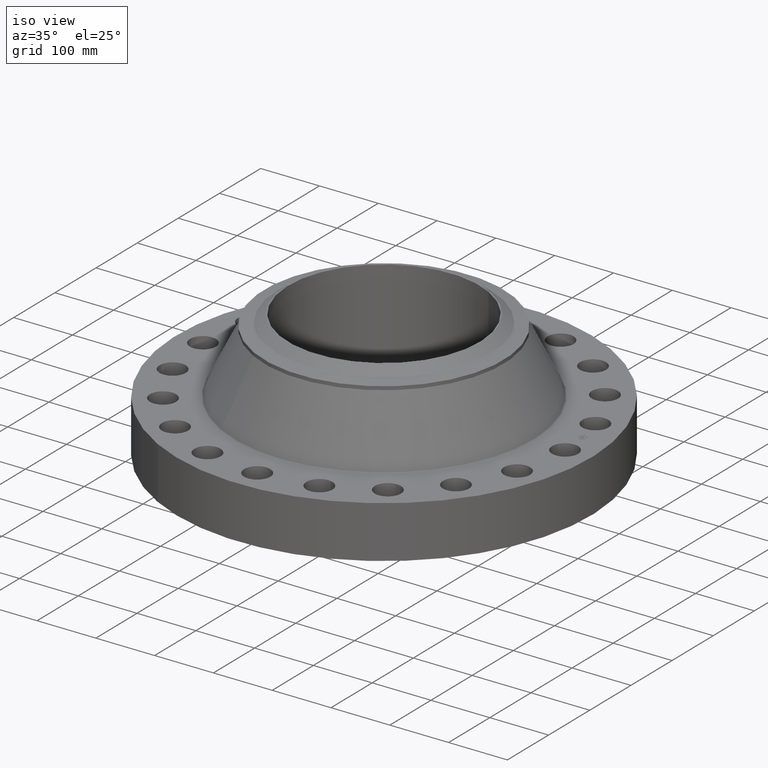
[diagram: clean part render]
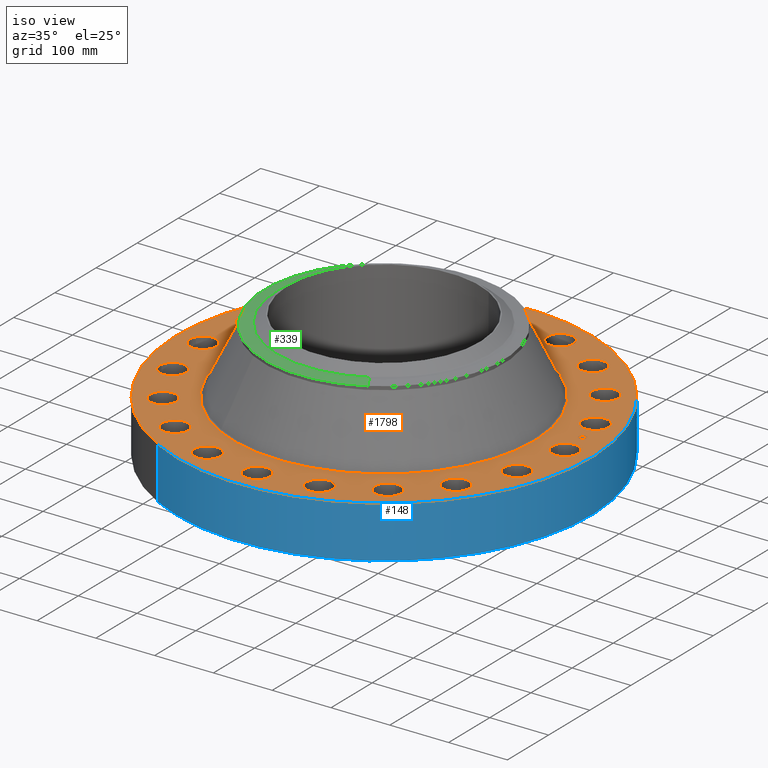
[diagram: same view with three faces highlighted in distinct colors, each labeled with its STEP entity id]
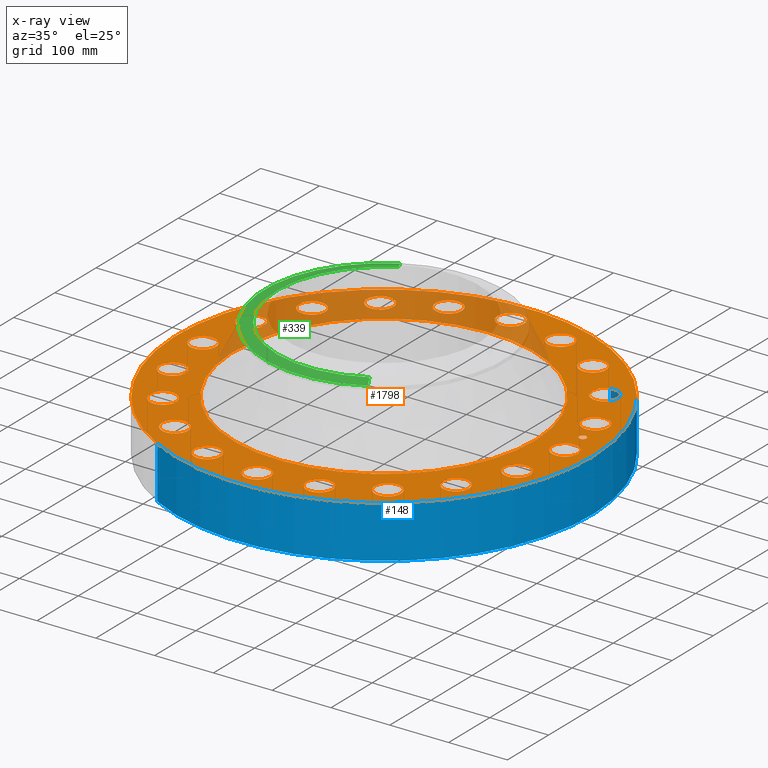
[diagram: x-ray of the same camera — body ghosted, the three highlighted faces saturated]
A machine part, iso view with three faces highlighted in distinct colors.
The next image is the same camera in x-ray (body ghosted, the three faces saturated) — at least one of them is partly hidden behind the body in this view.
Their STEP definitions:

[orange] entity #1798 — the highlighted planar face has unit normal (0, 0, -1).
#65=AXIS2_PLACEMENT_3D('Circle Axis2P3D',#63,#64,$) ;
#82=AXIS2_PLACEMENT_3D('Circle Axis2P3D',#80,#81,$) ;
#115=AXIS2_PLACEMENT_3D('Circle Axis2P3D',#113,#114,$) ;
#139=AXIS2_PLACEMENT_3D('Circle Axis2P3D',#137,#138,$) ;
#156=AXIS2_PLACEMENT_3D('Circle Axis2P3D',#154,#155,$) ;
#191=AXIS2_PLACEMENT_3D('Circle Axis2P3D',#189,#190,$) ;
#891=AXIS2_PLACEMENT_3D('Circle Axis2P3D',#889,#890,$) ;
#903=AXIS2_PLACEMENT_3D('Circle Axis2P3D',#901,#902,$) ;
#934=AXIS2_PLACEMENT_3D('Circle Axis2P3D',#932,#933,$) ;
#946=AXIS2_PLACEMENT_3D('Circle Axis2P3D',#944,#945,$) ;
#977=AXIS2_PLACEMENT_3D('Circle Axis2P3D',#975,#976,$) ;
#989=AXIS2_PLACEMENT_3D('Circle Axis2P3D',#987,#988,$) ;
#1020=AXIS2_PLACEMENT_3D('Circle Axis2P3D',#1018,#1019,$) ;
#1032=AXIS2_PLACEMENT_3D('Circle Axis2P3D',#1030,#1031,$) ;
#1063=AXIS2_PLACEMENT_3D('Circle Axis2P3D',#1061,#1062,$) ;
#1075=AXIS2_PLACEMENT_3D('Circle Axis2P3D',#1073,#1074,$) ;
#1106=AXIS2_PLACEMENT_3D('Circle Axis2P3D',#1104,#1105,$) ;
#1118=AXIS2_PLACEMENT_3D('Circle Axis2P3D',#1116,#1117,$) ;
#1149=AXIS2_PLACEMENT_3D('Circle Axis2P3D',#1147,#1148,$) ;
#1161=AXIS2_PLACEMENT_3D('Circle Axis2P3D',#1159,#1160,$) ;
#1192=AXIS2_PLACEMENT_3D('Circle Axis2P3D',#1190,#1191,$) ;
#1204=AXIS2_PLACEMENT_3D('Circle Axis2P3D',#1202,#1203,$) ;
#1235=AXIS2_PLACEMENT_3D('Circle Axis2P3D',#1233,#1234,$) ;
#1247=AXIS2_PLACEMENT_3D('Circle Axis2P3D',#1245,#1246,$) ;
#1278=AXIS2_PLACEMENT_3D('Circle Axis2P3D',#1276,#1277,$) ;
#1290=AXIS2_PLACEMENT_3D('Circle Axis2P3D',#1288,#1289,$) ;
#1321=AXIS2_PLACEMENT_3D('Circle Axis2P3D',#1319,#1320,$) ;
#1333=AXIS2_PLACEMENT_3D('Circle Axis2P3D',#1331,#1332,$) ;
#1364=AXIS2_PLACEMENT_3D('Circle Axis2P3D',#1362,#1363,$) ;
#1376=AXIS2_PLACEMENT_3D('Circle Axis2P3D',#1374,#1375,$) ;
#1407=AXIS2_PLACEMENT_3D('Circle Axis2P3D',#1405,#1406,$) ;
#1419=AXIS2_PLACEMENT_3D('Circle Axis2P3D',#1417,#1418,$) ;
#1450=AXIS2_PLACEMENT_3D('Circle Axis2P3D',#1448,#1449,$) ;
#1462=AXIS2_PLACEMENT_3D('Circle Axis2P3D',#1460,#1461,$) ;
#1493=AXIS2_PLACEMENT_3D('Circle Axis2P3D',#1491,#1492,$) ;
#1505=AXIS2_PLACEMENT_3D('Circle Axis2P3D',#1503,#1504,$) ;
#1536=AXIS2_PLACEMENT_3D('Circle Axis2P3D',#1534,#1535,$) ;
#1548=AXIS2_PLACEMENT_3D('Circle Axis2P3D',#1546,#1547,$) ;
#1579=AXIS2_PLACEMENT_3D('Circle Axis2P3D',#1577,#1578,$) ;
#1591=AXIS2_PLACEMENT_3D('Circle Axis2P3D',#1589,#1590,$) ;
#1622=AXIS2_PLACEMENT_3D('Circle Axis2P3D',#1620,#1621,$) ;
#1634=AXIS2_PLACEMENT_3D('Circle Axis2P3D',#1632,#1633,$) ;
#1665=AXIS2_PLACEMENT_3D('Circle Axis2P3D',#1663,#1664,$) ;
#1677=AXIS2_PLACEMENT_3D('Circle Axis2P3D',#1675,#1676,$) ;
#1690=AXIS2_PLACEMENT_3D('Plane Axis2P3D',#1687,#1688,#1689) ;
#1782=AXIS2_PLACEMENT_3D('Circle Axis2P3D',#1780,#1781,$) ;
#1791=AXIS2_PLACEMENT_3D('Circle Axis2P3D',#1789,#1790,$) ;
#46=CARTESIAN_POINT('Vertex',(11.3571152584,0.41949734628,3.50000000001)) ;
#60=CARTESIAN_POINT('Vertex',(12.8928847417,-0.41949734628,3.50000000001)) ;
#63=CARTESIAN_POINT('Axis2P3D Location',(12.125,0.,3.50000000001)) ;
#80=CARTESIAN_POINT('Axis2P3D Location',(12.125,0.,3.50000000001)) ;
#110=CARTESIAN_POINT('Vertex',(-6.65202934816,-12.1764580463,3.50000000001)) ;
#113=CARTESIAN_POINT('Axis2P3D Location',(0.,0.,3.50000000001)) ;
#117=CARTESIAN_POINT('Vertex',(6.65202934816,12.1764580463,3.50000000001)) ;
#137=CARTESIAN_POINT('Axis2P3D Location',(0.,0.,3.50000000001)) ;
#154=CARTESIAN_POINT('Axis2P3D Location',(0.,0.,3.50000000001)) ;
#158=CARTESIAN_POINT('Vertex',(4.83020647393,8.84163364387,3.50000000001)) ;
#160=CARTESIAN_POINT('Vertex',(-4.83020647393,-8.84163364387,3.50000000001)) ;
#189=CARTESIAN_POINT('Axis2P3D Location',(0.,0.,3.50000000001)) ;
#879=CARTESIAN_POINT('Vertex',(-10.9308902819,3.11057593717,3.50000000001)) ;
#886=CARTESIAN_POINT('Vertex',(-12.1322302383,4.38308617645,3.50000000001)) ;
#889=CARTESIAN_POINT('Axis2P3D Location',(-11.5315602601,3.74683105681,3.50000000001)) ;
#901=CARTESIAN_POINT('Axis2P3D Location',(-11.5315602601,3.74683105681,3.50000000001)) ;
#922=CARTESIAN_POINT('Vertex',(9.43467360463,-6.33616437523,3.50000000001)) ;
#929=CARTESIAN_POINT('Vertex',(10.183988509,-7.91762799292,3.50000000001)) ;
#932=CARTESIAN_POINT('Axis2P3D Location',(9.80933105684,-7.12689618407,3.50000000001)) ;
#944=CARTESIAN_POINT('Axis2P3D Location',(9.80933105684,-7.12689618407,3.50000000001)) ;
#965=CARTESIAN_POINT('Vertex',(-9.43467360463,6.33616437523,3.50000000001)) ;
#972=CARTESIAN_POINT('Vertex',(-10.183988509,7.91762799292,3.50000000001)) ;
#975=CARTESIAN_POINT('Axis2P3D Location',(-9.80933105684,7.12689618407,3.50000000001)) ;
#987=CARTESIAN_POINT('Axis2P3D Location',(-9.80933105684,7.12689618407,3.50000000001)) ;
#1008=CARTESIAN_POINT('Vertex',(7.0149253397,-8.94152489759,3.50000000001)) ;
#1015=CARTESIAN_POINT('Vertex',(7.23886702845,-10.6771372161,3.50000000001)) ;
#1018=CARTESIAN_POINT('Axis2P3D Location',(7.12689618407,-9.80933105684,3.50000000001)) ;
#1030=CARTESIAN_POINT('Axis2P3D Location',(7.12689618407,-9.80933105684,3.50000000001)) ;
#1051=CARTESIAN_POINT('Vertex',(-7.0149253397,8.94152489759,3.50000000001)) ;
#1058=CARTESIAN_POINT('Vertex',(-7.23886702845,10.6771372161,3.50000000001)) ;
#1061=CARTESIAN_POINT('Axis2P3D Location',(-7.12689618407,9.80933105684,3.50000000001)) ;
#1073=CARTESIAN_POINT('Axis2P3D Location',(-7.12689618407,9.80933105684,3.50000000001)) ;
#1094=CARTESIAN_POINT('Vertex',(3.90850730667,-10.6716266637,3.50000000001)) ;
#1101=CARTESIAN_POINT('Vertex',(3.58515480696,-12.3914938565,3.50000000001)) ;
#1104=CARTESIAN_POINT('Axis2P3D Location',(3.74683105681,-11.5315602601,3.50000000001)) ;
#1116=CARTESIAN_POINT('Axis2P3D Location',(3.74683105681,-11.5315602601,3.50000000001)) ;
#1137=CARTESIAN_POINT('Vertex',(-3.90850730667,10.6716266637,3.50000000001)) ;
#1144=CARTESIAN_POINT('Vertex',(-3.58515480696,12.3914938565,3.50000000001)) ;
#1147=CARTESIAN_POINT('Axis2P3D Location',(-3.74683105681,11.5315602601,3.50000000001)) ;
#1159=CARTESIAN_POINT('Axis2P3D Location',(-3.74683105681,11.5315602601,3.50000000001)) ;
#1180=CARTESIAN_POINT('Vertex',(0.41949734628,-11.3571152584,3.50000000001)) ;
#1187=CARTESIAN_POINT('Vertex',(-0.41949734628,-12.8928847417,3.50000000001)) ;
#1190=CARTESIAN_POINT('Axis2P3D Location',(3.43473295671E-015,-12.125,3.50000000001)) ;
#1202=CARTESIAN_POINT('Axis2P3D Location',(3.43473295671E-015,-12.125,3.50000000001)) ;
#1223=CARTESIAN_POINT('Vertex',(-0.41949734628,11.3571152584,3.50000000001)) ;
#1230=CARTESIAN_POINT('Vertex',(0.41949734628,12.8928847417,3.50000000001)) ;
#1233=CARTESIAN_POINT('Axis2P3D Location',(-1.29964897049E-014,12.125,3.50000000001)) ;
#1245=CARTESIAN_POINT('Axis2P3D Location',(-1.29964897049E-014,12.125,3.50000000001)) ;
#1266=CARTESIAN_POINT('Vertex',(-3.11057593717,-10.9308902819,3.50000000001)) ;
#1273=CARTESIAN_POINT('Vertex',(-4.38308617645,-12.1322302383,3.50000000001)) ;
#1276=CARTESIAN_POINT('Axis2P3D Location',(-3.74683105681,-11.5315602601,3.50000000001)) ;
#1288=CARTESIAN_POINT('Axis2P3D Location',(-3.74683105681,-11.5315602601,3.50000000001)) ;
#1309=CARTESIAN_POINT('Vertex',(3.11057593717,10.9308902819,3.50000000001)) ;
#1316=CARTESIAN_POINT('Vertex',(4.38308617645,12.1322302383,3.50000000001)) ;
#1319=CARTESIAN_POINT('Axis2P3D Location',(3.74683105681,11.5315602601,3.50000000001)) ;
#1331=CARTESIAN_POINT('Axis2P3D Location',(3.74683105681,11.5315602601,3.50000000001)) ;
#1352=CARTESIAN_POINT('Vertex',(-6.33616437523,-9.43467360463,3.50000000001)) ;
#1359=CARTESIAN_POINT('Vertex',(-7.91762799292,-10.183988509,3.50000000001)) ;
#1362=CARTESIAN_POINT('Axis2P3D Location',(-7.12689618407,-9.80933105684,3.50000000001)) ;
#1374=CARTESIAN_POINT('Axis2P3D Location',(-7.12689618407,-9.80933105684,3.50000000001)) ;
#1395=CARTESIAN_POINT('Vertex',(6.33616437523,9.43467360463,3.50000000001)) ;
#1402=CARTESIAN_POINT('Vertex',(7.91762799292,10.183988509,3.50000000001)) ;
#1405=CARTESIAN_POINT('Axis2P3D Location',(7.12689618407,9.80933105684,3.50000000001)) ;
#1417=CARTESIAN_POINT('Axis2P3D Location',(7.12689618407,9.80933105684,3.50000000001)) ;
#1438=CARTESIAN_POINT('Vertex',(-8.94152489759,-7.0149253397,3.50000000001)) ;
#1445=CARTESIAN_POINT('Vertex',(-10.6771372161,-7.23886702845,3.50000000001)) ;
#1448=CARTESIAN_POINT('Axis2P3D Location',(-9.80933105684,-7.12689618407,3.50000000001)) ;
#1460=CARTESIAN_POINT('Axis2P3D Location',(-9.80933105684,-7.12689618407,3.50000000001)) ;
#1481=CARTESIAN_POINT('Vertex',(8.94152489759,7.0149253397,3.50000000001)) ;
#1488=CARTESIAN_POINT('Vertex',(10.6771372161,7.23886702845,3.50000000001)) ;
#1491=CARTESIAN_POINT('Axis2P3D Location',(9.80933105684,7.12689618407,3.50000000001)) ;
#1503=CARTESIAN_POINT('Axis2P3D Location',(9.80933105684,7.12689618407,3.50000000001)) ;
#1524=CARTESIAN_POINT('Vertex',(-10.6716266637,-3.90850730667,3.50000000001)) ;
#1531=CARTESIAN_POINT('Vertex',(-12.3914938565,-3.58515480696,3.50000000001)) ;
#1534=CARTESIAN_POINT('Axis2P3D Location',(-11.5315602601,-3.74683105681,3.50000000001)) ;
#1546=CARTESIAN_POINT('Axis2P3D Location',(-11.5315602601,-3.74683105681,3.50000000001)) ;
#1567=CARTESIAN_POINT('Vertex',(10.6716266637,3.90850730667,3.50000000001)) ;
#1574=CARTESIAN_POINT('Vertex',(12.3914938565,3.58515480696,3.50000000001)) ;
#1577=CARTESIAN_POINT('Axis2P3D Location',(11.5315602601,3.74683105681,3.50000000001)) ;
#1589=CARTESIAN_POINT('Axis2P3D Location',(11.5315602601,3.74683105681,3.50000000001)) ;
#1610=CARTESIAN_POINT('Vertex',(-11.3571152584,-0.41949734628,3.50000000001)) ;
#1617=CARTESIAN_POINT('Vertex',(-12.8928847417,0.41949734628,3.50000000001)) ;
#1620=CARTESIAN_POINT('Axis2P3D Location',(-12.125,-6.86946591343E-015,3.50000000001)) ;
#1632=CARTESIAN_POINT('Axis2P3D Location',(-12.125,-6.86946591343E-015,3.50000000001)) ;
#1653=CARTESIAN_POINT('Vertex',(10.9308902819,-3.11057593717,3.50000000001)) ;
#1660=CARTESIAN_POINT('Vertex',(12.1322302383,-4.38308617645,3.50000000001)) ;
#1663=CARTESIAN_POINT('Axis2P3D Location',(11.5315602601,-3.74683105681,3.50000000001)) ;
#1675=CARTESIAN_POINT('Axis2P3D Location',(11.5315602601,-3.74683105681,3.50000000001)) ;
#1687=CARTESIAN_POINT('Axis2P3D Location',(0.,13.8750000001,3.50000000001)) ;
#1780=CARTESIAN_POINT('Axis2P3D Location',(11.9757211298,1.89676788862,3.50000000001)) ;
#1784=CARTESIAN_POINT('Vertex',(11.9370035997,2.14122075292,3.50000000001)) ;
#1786=CARTESIAN_POINT('Vertex',(12.0144386599,1.65231502432,3.50000000001)) ;
#1789=CARTESIAN_POINT('Axis2P3D Location',(11.9757211298,1.89676788862,3.50000000001)) ;
#64=DIRECTION('Axis2P3D Direction',(0.,-0.,-0.0393700787402)) ;
#81=DIRECTION('Axis2P3D Direction',(0.,-0.,-0.0393700787402)) ;
#114=DIRECTION('Axis2P3D Direction',(0.,0.,-0.0393700787402)) ;
#138=DIRECTION('Axis2P3D Direction',(0.,0.,-0.0393700787402)) ;
#155=DIRECTION('Axis2P3D Direction',(0.,0.,-0.0393700787402)) ;
#190=DIRECTION('Axis2P3D Direction',(0.,0.,-0.0393700787402)) ;
#890=DIRECTION('Axis2P3D Direction',(0.,0.,-0.0393700787402)) ;
#902=DIRECTION('Axis2P3D Direction',(0.,0.,-0.0393700787402)) ;
#933=DIRECTION('Axis2P3D Direction',(0.,-0.,-0.0393700787402)) ;
#945=DIRECTION('Axis2P3D Direction',(0.,-0.,-0.0393700787402)) ;
#976=DIRECTION('Axis2P3D Direction',(0.,0.,-0.0393700787402)) ;
#988=DIRECTION('Axis2P3D Direction',(0.,0.,-0.0393700787402)) ;
#1019=DIRECTION('Axis2P3D Direction',(0.,-0.,-0.0393700787402)) ;
#1031=DIRECTION('Axis2P3D Direction',(0.,-0.,-0.0393700787402)) ;
#1062=DIRECTION('Axis2P3D Direction',(0.,0.,-0.0393700787402)) ;
#1074=DIRECTION('Axis2P3D Direction',(0.,0.,-0.0393700787402)) ;
#1105=DIRECTION('Axis2P3D Direction',(0.,-0.,-0.0393700787402)) ;
#1117=DIRECTION('Axis2P3D Direction',(0.,-0.,-0.0393700787402)) ;
#1148=DIRECTION('Axis2P3D Direction',(0.,0.,-0.0393700787402)) ;
#1160=DIRECTION('Axis2P3D Direction',(0.,0.,-0.0393700787402)) ;
#1191=DIRECTION('Axis2P3D Direction',(0.,-0.,-0.0393700787402)) ;
#1203=DIRECTION('Axis2P3D Direction',(0.,-0.,-0.0393700787402)) ;
#1234=DIRECTION('Axis2P3D Direction',(0.,0.,-0.0393700787402)) ;
#1246=DIRECTION('Axis2P3D Direction',(0.,0.,-0.0393700787402)) ;
#1277=DIRECTION('Axis2P3D Direction',(-0.,0.,-0.0393700787402)) ;
#1289=DIRECTION('Axis2P3D Direction',(-0.,0.,-0.0393700787402)) ;
#1320=DIRECTION('Axis2P3D Direction',(0.,0.,-0.0393700787402)) ;
#1332=DIRECTION('Axis2P3D Direction',(0.,0.,-0.0393700787402)) ;
#1363=DIRECTION('Axis2P3D Direction',(-0.,0.,-0.0393700787402)) ;
#1375=DIRECTION('Axis2P3D Direction',(-0.,0.,-0.0393700787402)) ;
#1406=DIRECTION('Axis2P3D Direction',(0.,0.,-0.0393700787402)) ;
#1418=DIRECTION('Axis2P3D Direction',(0.,0.,-0.0393700787402)) ;
#1449=DIRECTION('Axis2P3D Direction',(-0.,0.,-0.0393700787402)) ;
#1461=DIRECTION('Axis2P3D Direction',(-0.,0.,-0.0393700787402)) ;
#1492=DIRECTION('Axis2P3D Direction',(0.,0.,-0.0393700787402)) ;
#1504=DIRECTION('Axis2P3D Direction',(0.,0.,-0.0393700787402)) ;
#1535=DIRECTION('Axis2P3D Direction',(-0.,0.,-0.0393700787402)) ;
#1547=DIRECTION('Axis2P3D Direction',(-0.,0.,-0.0393700787402)) ;
#1578=DIRECTION('Axis2P3D Direction',(0.,0.,-0.0393700787402)) ;
#1590=DIRECTION('Axis2P3D Direction',(0.,0.,-0.0393700787402)) ;
#1621=DIRECTION('Axis2P3D Direction',(-0.,0.,-0.0393700787402)) ;
#1633=DIRECTION('Axis2P3D Direction',(-0.,0.,-0.0393700787402)) ;
#1664=DIRECTION('Axis2P3D Direction',(0.,-0.,-0.0393700787402)) ;
#1676=DIRECTION('Axis2P3D Direction',(0.,-0.,-0.0393700787402)) ;
#1688=DIRECTION('Axis2P3D Direction',(0.,0.,-0.0393700787402)) ;
#1689=DIRECTION('Axis2P3D XDirection',(0.0393700787402,0.,0.)) ;
#1781=DIRECTION('Axis2P3D Direction',(0.,0.,-0.0393700787402)) ;
#1790=DIRECTION('Axis2P3D Direction',(0.,0.,-0.0393700787402)) ;
#1693=ORIENTED_EDGE('',*,*,#141,.F.) ;
#1694=ORIENTED_EDGE('',*,*,#119,.F.) ;
#1697=ORIENTED_EDGE('',*,*,#67,.T.) ;
#1698=ORIENTED_EDGE('',*,*,#84,.T.) ;
#1701=ORIENTED_EDGE('',*,*,#193,.T.) ;
#1702=ORIENTED_EDGE('',*,*,#162,.T.) ;
#1705=ORIENTED_EDGE('',*,*,#1679,.T.) ;
#1706=ORIENTED_EDGE('',*,*,#1667,.T.) ;
#1709=ORIENTED_EDGE('',*,*,#948,.T.) ;
#1710=ORIENTED_EDGE('',*,*,#936,.T.) ;
#1713=ORIENTED_EDGE('',*,*,#1034,.T.) ;
#1714=ORIENTED_EDGE('',*,*,#1022,.T.) ;
#1717=ORIENTED_EDGE('',*,*,#1120,.T.) ;
#1718=ORIENTED_EDGE('',*,*,#1108,.T.) ;
#1721=ORIENTED_EDGE('',*,*,#1206,.T.) ;
#1722=ORIENTED_EDGE('',*,*,#1194,.T.) ;
#1725=ORIENTED_EDGE('',*,*,#1292,.T.) ;
#1726=ORIENTED_EDGE('',*,*,#1280,.T.) ;
#1729=ORIENTED_EDGE('',*,*,#1378,.T.) ;
#1730=ORIENTED_EDGE('',*,*,#1366,.T.) ;
#1733=ORIENTED_EDGE('',*,*,#1464,.T.) ;
#1734=ORIENTED_EDGE('',*,*,#1452,.T.) ;
#1737=ORIENTED_EDGE('',*,*,#1550,.T.) ;
#1738=ORIENTED_EDGE('',*,*,#1538,.T.) ;
#1741=ORIENTED_EDGE('',*,*,#1636,.T.) ;
#1742=ORIENTED_EDGE('',*,*,#1624,.T.) ;
#1745=ORIENTED_EDGE('',*,*,#905,.T.) ;
#1746=ORIENTED_EDGE('',*,*,#893,.T.) ;
#1749=ORIENTED_EDGE('',*,*,#991,.T.) ;
#1750=ORIENTED_EDGE('',*,*,#979,.T.) ;
#1753=ORIENTED_EDGE('',*,*,#1077,.T.) ;
#1754=ORIENTED_EDGE('',*,*,#1065,.T.) ;
#1757=ORIENTED_EDGE('',*,*,#1163,.T.) ;
#1758=ORIENTED_EDGE('',*,*,#1151,.T.) ;
#1761=ORIENTED_EDGE('',*,*,#1249,.T.) ;
#1762=ORIENTED_EDGE('',*,*,#1237,.T.) ;
#1765=ORIENTED_EDGE('',*,*,#1335,.T.) ;
#1766=ORIENTED_EDGE('',*,*,#1323,.T.) ;
#1769=ORIENTED_EDGE('',*,*,#1421,.T.) ;
#1770=ORIENTED_EDGE('',*,*,#1409,.T.) ;
#1773=ORIENTED_EDGE('',*,*,#1507,.T.) ;
#1774=ORIENTED_EDGE('',*,*,#1495,.T.) ;
#1777=ORIENTED_EDGE('',*,*,#1593,.T.) ;
#1778=ORIENTED_EDGE('',*,*,#1581,.T.) ;
#1795=ORIENTED_EDGE('',*,*,#1788,.T.) ;
#1796=ORIENTED_EDGE('',*,*,#1793,.T.) ;
#1699=FACE_BOUND('',#1696,.T.) ;
#1703=FACE_BOUND('',#1700,.T.) ;
#1707=FACE_BOUND('',#1704,.T.) ;
#1711=FACE_BOUND('',#1708,.T.) ;
#1715=FACE_BOUND('',#1712,.T.) ;
#1719=FACE_BOUND('',#1716,.T.) ;
#1723=FACE_BOUND('',#1720,.T.) ;
#1727=FACE_BOUND('',#1724,.T.) ;
#1731=FACE_BOUND('',#1728,.T.) ;
#1735=FACE_BOUND('',#1732,.T.) ;
#1739=FACE_BOUND('',#1736,.T.) ;
#1743=FACE_BOUND('',#1740,.T.) ;
#1747=FACE_BOUND('',#1744,.T.) ;
#1751=FACE_BOUND('',#1748,.T.) ;
#1755=FACE_BOUND('',#1752,.T.) ;
#1759=FACE_BOUND('',#1756,.T.) ;
#1763=FACE_BOUND('',#1760,.T.) ;
#1767=FACE_BOUND('',#1764,.T.) ;
#1771=FACE_BOUND('',#1768,.T.) ;
#1775=FACE_BOUND('',#1772,.T.) ;
#1779=FACE_BOUND('',#1776,.T.) ;
#1797=FACE_BOUND('',#1794,.T.) ;
#1798=ADVANCED_FACE('PartBody',(#1695,#1699,#1703,#1707,#1711,#1715,#1719,#1723,#1727,#1731,#1735,#1739,#1743,#1747,#1751,#1755,#1759,#1763,#1767,#1771,#1775,#1779,#1797),#1691,.F.) ;
#66=CIRCLE('generated circle',#65,0.875000000004) ;
#83=CIRCLE('generated circle',#82,0.875000000004) ;
#116=CIRCLE('generated circle',#115,13.8750000001) ;
#140=CIRCLE('generated circle',#139,13.8750000001) ;
#157=CIRCLE('generated circle',#156,10.0749878448) ;
#192=CIRCLE('generated circle',#191,10.0749878448) ;
#892=CIRCLE('generated circle',#891,0.875000000004) ;
#904=CIRCLE('generated circle',#903,0.875000000004) ;
#935=CIRCLE('generated circle',#934,0.875000000004) ;
#947=CIRCLE('generated circle',#946,0.875000000004) ;
#978=CIRCLE('generated circle',#977,0.875000000004) ;
#990=CIRCLE('generated circle',#989,0.875000000004) ;
#1021=CIRCLE('generated circle',#1020,0.875000000004) ;
#1033=CIRCLE('generated circle',#1032,0.875000000004) ;
#1064=CIRCLE('generated circle',#1063,0.875000000004) ;
#1076=CIRCLE('generated circle',#1075,0.875000000004) ;
#1107=CIRCLE('generated circle',#1106,0.875000000004) ;
#1119=CIRCLE('generated circle',#1118,0.875000000004) ;
#1150=CIRCLE('generated circle',#1149,0.875000000004) ;
#1162=CIRCLE('generated circle',#1161,0.875000000004) ;
#1193=CIRCLE('generated circle',#1192,0.875000000004) ;
#1205=CIRCLE('generated circle',#1204,0.875000000004) ;
#1236=CIRCLE('generated circle',#1235,0.875000000004) ;
#1248=CIRCLE('generated circle',#1247,0.875000000004) ;
#1279=CIRCLE('generated circle',#1278,0.875000000004) ;
#1291=CIRCLE('generated circle',#1290,0.875000000004) ;
#1322=CIRCLE('generated circle',#1321,0.875000000004) ;
#1334=CIRCLE('generated circle',#1333,0.875000000004) ;
#1365=CIRCLE('generated circle',#1364,0.875000000003) ;
#1377=CIRCLE('generated circle',#1376,0.875000000003) ;
#1408=CIRCLE('generated circle',#1407,0.875000000003) ;
#1420=CIRCLE('generated circle',#1419,0.875000000003) ;
#1451=CIRCLE('generated circle',#1450,0.875000000004) ;
#1463=CIRCLE('generated circle',#1462,0.875000000004) ;
#1494=CIRCLE('generated circle',#1493,0.875000000004) ;
#1506=CIRCLE('generated circle',#1505,0.875000000004) ;
#1537=CIRCLE('generated circle',#1536,0.875000000004) ;
#1549=CIRCLE('generated circle',#1548,0.875000000004) ;
#1580=CIRCLE('generated circle',#1579,0.875000000004) ;
#1592=CIRCLE('generated circle',#1591,0.875000000004) ;
#1623=CIRCLE('generated circle',#1622,0.875000000004) ;
#1635=CIRCLE('generated circle',#1634,0.875000000004) ;
#1666=CIRCLE('generated circle',#1665,0.875000000004) ;
#1678=CIRCLE('generated circle',#1677,0.875000000004) ;
#1783=CIRCLE('generated circle',#1782,0.247500000001) ;
#1792=CIRCLE('generated circle',#1791,0.247500000001) ;
#67=EDGE_CURVE('',#47,#61,#66,.T.) ;
#84=EDGE_CURVE('',#61,#47,#83,.T.) ;
#119=EDGE_CURVE('',#111,#118,#116,.T.) ;
#141=EDGE_CURVE('',#118,#111,#140,.T.) ;
#162=EDGE_CURVE('',#159,#161,#157,.T.) ;
#193=EDGE_CURVE('',#161,#159,#192,.T.) ;
#893=EDGE_CURVE('',#880,#887,#892,.T.) ;
#905=EDGE_CURVE('',#887,#880,#904,.T.) ;
#936=EDGE_CURVE('',#923,#930,#935,.T.) ;
#948=EDGE_CURVE('',#930,#923,#947,.T.) ;
#979=EDGE_CURVE('',#966,#973,#978,.T.) ;
#991=EDGE_CURVE('',#973,#966,#990,.T.) ;
#1022=EDGE_CURVE('',#1009,#1016,#1021,.T.) ;
#1034=EDGE_CURVE('',#1016,#1009,#1033,.T.) ;
#1065=EDGE_CURVE('',#1052,#1059,#1064,.T.) ;
#1077=EDGE_CURVE('',#1059,#1052,#1076,.T.) ;
#1108=EDGE_CURVE('',#1095,#1102,#1107,.T.) ;
#1120=EDGE_CURVE('',#1102,#1095,#1119,.T.) ;
#1151=EDGE_CURVE('',#1138,#1145,#1150,.T.) ;
#1163=EDGE_CURVE('',#1145,#1138,#1162,.T.) ;
#1194=EDGE_CURVE('',#1181,#1188,#1193,.T.) ;
#1206=EDGE_CURVE('',#1188,#1181,#1205,.T.) ;
#1237=EDGE_CURVE('',#1224,#1231,#1236,.T.) ;
#1249=EDGE_CURVE('',#1231,#1224,#1248,.T.) ;
#1280=EDGE_CURVE('',#1267,#1274,#1279,.T.) ;
#1292=EDGE_CURVE('',#1274,#1267,#1291,.T.) ;
#1323=EDGE_CURVE('',#1310,#1317,#1322,.T.) ;
#1335=EDGE_CURVE('',#1317,#1310,#1334,.T.) ;
#1366=EDGE_CURVE('',#1353,#1360,#1365,.T.) ;
#1378=EDGE_CURVE('',#1360,#1353,#1377,.T.) ;
#1409=EDGE_CURVE('',#1396,#1403,#1408,.T.) ;
#1421=EDGE_CURVE('',#1403,#1396,#1420,.T.) ;
#1452=EDGE_CURVE('',#1439,#1446,#1451,.T.) ;
#1464=EDGE_CURVE('',#1446,#1439,#1463,.T.) ;
#1495=EDGE_CURVE('',#1482,#1489,#1494,.T.) ;
#1507=EDGE_CURVE('',#1489,#1482,#1506,.T.) ;
#1538=EDGE_CURVE('',#1525,#1532,#1537,.T.) ;
#1550=EDGE_CURVE('',#1532,#1525,#1549,.T.) ;
#1581=EDGE_CURVE('',#1568,#1575,#1580,.T.) ;
#1593=EDGE_CURVE('',#1575,#1568,#1592,.T.) ;
#1624=EDGE_CURVE('',#1611,#1618,#1623,.T.) ;
#1636=EDGE_CURVE('',#1618,#1611,#1635,.T.) ;
#1667=EDGE_CURVE('',#1654,#1661,#1666,.T.) ;
#1679=EDGE_CURVE('',#1661,#1654,#1678,.T.) ;
#1788=EDGE_CURVE('',#1785,#1787,#1783,.T.) ;
#1793=EDGE_CURVE('',#1787,#1785,#1792,.T.) ;
#1692=EDGE_LOOP('',(#1693,#1694)) ;
#1696=EDGE_LOOP('',(#1697,#1698)) ;
#1700=EDGE_LOOP('',(#1701,#1702)) ;
#1704=EDGE_LOOP('',(#1705,#1706)) ;
#1708=EDGE_LOOP('',(#1709,#1710)) ;
#1712=EDGE_LOOP('',(#1713,#1714)) ;
#1716=EDGE_LOOP('',(#1717,#1718)) ;
#1720=EDGE_LOOP('',(#1721,#1722)) ;
#1724=EDGE_LOOP('',(#1725,#1726)) ;
#1728=EDGE_LOOP('',(#1729,#1730)) ;
#1732=EDGE_LOOP('',(#1733,#1734)) ;
#1736=EDGE_LOOP('',(#1737,#1738)) ;
#1740=EDGE_LOOP('',(#1741,#1742)) ;
#1744=EDGE_LOOP('',(#1745,#1746)) ;
#1748=EDGE_LOOP('',(#1749,#1750)) ;
#1752=EDGE_LOOP('',(#1753,#1754)) ;
#1756=EDGE_LOOP('',(#1757,#1758)) ;
#1760=EDGE_LOOP('',(#1761,#1762)) ;
#1764=EDGE_LOOP('',(#1765,#1766)) ;
#1768=EDGE_LOOP('',(#1769,#1770)) ;
#1772=EDGE_LOOP('',(#1773,#1774)) ;
#1776=EDGE_LOOP('',(#1777,#1778)) ;
#1794=EDGE_LOOP('',(#1795,#1796)) ;
#1695=FACE_OUTER_BOUND('',#1692,.T.) ;
#1691=PLANE('',#1690) ;
#47=VERTEX_POINT('',#46) ;
#61=VERTEX_POINT('',#60) ;
#111=VERTEX_POINT('',#110) ;
#118=VERTEX_POINT('',#117) ;
#159=VERTEX_POINT('',#158) ;
#161=VERTEX_POINT('',#160) ;
#880=VERTEX_POINT('',#879) ;
#887=VERTEX_POINT('',#886) ;
#923=VERTEX_POINT('',#922) ;
#930=VERTEX_POINT('',#929) ;
#966=VERTEX_POINT('',#965) ;
#973=VERTEX_POINT('',#972) ;
#1009=VERTEX_POINT('',#1008) ;
#1016=VERTEX_POINT('',#1015) ;
#1052=VERTEX_POINT('',#1051) ;
#1059=VERTEX_POINT('',#1058) ;
#1095=VERTEX_POINT('',#1094) ;
#1102=VERTEX_POINT('',#1101) ;
#1138=VERTEX_POINT('',#1137) ;
#1145=VERTEX_POINT('',#1144) ;
#1181=VERTEX_POINT('',#1180) ;
#1188=VERTEX_POINT('',#1187) ;
#1224=VERTEX_POINT('',#1223) ;
#1231=VERTEX_POINT('',#1230) ;
#1267=VERTEX_POINT('',#1266) ;
#1274=VERTEX_POINT('',#1273) ;
#1310=VERTEX_POINT('',#1309) ;
#1317=VERTEX_POINT('',#1316) ;
#1353=VERTEX_POINT('',#1352) ;
#1360=VERTEX_POINT('',#1359) ;
#1396=VERTEX_POINT('',#1395) ;
#1403=VERTEX_POINT('',#1402) ;
#1439=VERTEX_POINT('',#1438) ;
#1446=VERTEX_POINT('',#1445) ;
#1482=VERTEX_POINT('',#1481) ;
#1489=VERTEX_POINT('',#1488) ;
#1525=VERTEX_POINT('',#1524) ;
#1532=VERTEX_POINT('',#1531) ;
#1568=VERTEX_POINT('',#1567) ;
#1575=VERTEX_POINT('',#1574) ;
#1611=VERTEX_POINT('',#1610) ;
#1618=VERTEX_POINT('',#1617) ;
#1654=VERTEX_POINT('',#1653) ;
#1661=VERTEX_POINT('',#1660) ;
#1785=VERTEX_POINT('',#1784) ;
#1787=VERTEX_POINT('',#1786) ;

[blue] entity #148 — the highlighted cylindrical surface (partial cylindrical patch) has radius 352.425 mm, axis along (0, 0, -1).
#95=AXIS2_PLACEMENT_3D('Cylinder Axis2P3D',#92,#93,#94) ;
#134=AXIS2_PLACEMENT_3D('Circle Axis2P3D',#132,#133,$) ;
#139=AXIS2_PLACEMENT_3D('Circle Axis2P3D',#137,#138,$) ;
#92=CARTESIAN_POINT('Axis2P3D Location',(0.,0.,4.25000000002)) ;
#101=CARTESIAN_POINT('Vertex',(-6.65202934816,-12.1764580463,1.67844740731E-015)) ;
#103=CARTESIAN_POINT('Vertex',(6.65202934816,12.1764580463,1.67844740731E-015)) ;
#106=CARTESIAN_POINT('Line Origine',(-6.65202934816,-12.1764580463,1.75000000001)) ;
#110=CARTESIAN_POINT('Vertex',(-6.65202934816,-12.1764580463,3.50000000001)) ;
#117=CARTESIAN_POINT('Vertex',(6.65202934816,12.1764580463,3.50000000001)) ;
#120=CARTESIAN_POINT('Line Origine',(6.65202934816,12.1764580463,1.75000000001)) ;
#132=CARTESIAN_POINT('Axis2P3D Location',(0.,0.,1.67844740731E-015)) ;
#137=CARTESIAN_POINT('Axis2P3D Location',(0.,0.,3.50000000001)) ;
#93=DIRECTION('Axis2P3D Direction',(0.,0.,-0.0393700787402)) ;
#94=DIRECTION('Axis2P3D XDirection',(0.0188750212049,0.0345504945626,0.)) ;
#107=DIRECTION('Vector Direction',(0.,0.,-0.0393700787402)) ;
#121=DIRECTION('Vector Direction',(0.,0.,-0.0393700787402)) ;
#133=DIRECTION('Axis2P3D Direction',(0.,0.,-0.0393700787402)) ;
#138=DIRECTION('Axis2P3D Direction',(0.,0.,-0.0393700787402)) ;
#108=VECTOR('Line Direction',#107,0.0393700787402) ;
#122=VECTOR('Line Direction',#121,0.0393700787402) ;
#143=ORIENTED_EDGE('',*,*,#136,.F.) ;
#144=ORIENTED_EDGE('',*,*,#124,.T.) ;
#145=ORIENTED_EDGE('',*,*,#141,.T.) ;
#146=ORIENTED_EDGE('',*,*,#112,.F.) ;
#148=ADVANCED_FACE('PartBody',(#147),#96,.T.) ;
#135=CIRCLE('generated circle',#134,13.8750000001) ;
#140=CIRCLE('generated circle',#139,13.8750000001) ;
#96=CYLINDRICAL_SURFACE('generated cylinder',#95,13.8750000001) ;
#112=EDGE_CURVE('',#102,#111,#109,.F.) ;
#124=EDGE_CURVE('',#104,#118,#123,.F.) ;
#136=EDGE_CURVE('',#104,#102,#135,.T.) ;
#141=EDGE_CURVE('',#118,#111,#140,.T.) ;
#142=EDGE_LOOP('',(#143,#144,#145,#146)) ;
#147=FACE_OUTER_BOUND('',#142,.T.) ;
#109=LINE('Line',#106,#108) ;
#123=LINE('Line',#120,#122) ;
#102=VERTEX_POINT('',#101) ;
#104=VERTEX_POINT('',#103) ;
#111=VERTEX_POINT('',#110) ;
#118=VERTEX_POINT('',#117) ;

[green] entity #339 — the highlighted conical surface has half-angle 80 deg.
#277=AXIS2_PLACEMENT_3D('Circle Axis2P3D',#275,#276,$) ;
#290=AXIS2_PLACEMENT_3D('Circle Axis2P3D',#288,#289,$) ;
#311=AXIS2_PLACEMENT_3D('Cone Axis2P3D',#308,#309,#310) ;
#322=AXIS2_PLACEMENT_3D('Circle Axis2P3D',#320,#321,$) ;
#258=CARTESIAN_POINT('Vertex',(-3.83540430885,-7.02066049515,7.83726762104)) ;
#272=CARTESIAN_POINT('Vertex',(3.83540430885,-7.02066049515,7.83726762104)) ;
#275=CARTESIAN_POINT('Axis2P3D Location',(0.,0.,7.83726762104)) ;
#288=CARTESIAN_POINT('Axis2P3D Location',(0.,0.,7.83726762104)) ;
#292=CARTESIAN_POINT('Vertex',(-3.83540430885,7.02066049515,7.83726762104)) ;
#308=CARTESIAN_POINT('Axis2P3D Location',(0.,0.,7.98141601925)) ;
#313=CARTESIAN_POINT('Line Origine',(3.6394376361,-6.66194590683,7.90934182015)) ;
#317=CARTESIAN_POINT('Vertex',(3.44347096336,-6.3032313185,7.98141601925)) ;
#320=CARTESIAN_POINT('Axis2P3D Location',(0.,0.,7.98141601925)) ;
#324=CARTESIAN_POINT('Vertex',(-3.44347096336,6.3032313185,7.98141601925)) ;
#327=CARTESIAN_POINT('Line Origine',(-3.6394376361,6.66194590683,7.90934182015)) ;
#276=DIRECTION('Axis2P3D Direction',(0.,0.,-0.0393700787402)) ;
#289=DIRECTION('Axis2P3D Direction',(0.,0.,-0.0393700787402)) ;
#309=DIRECTION('Axis2P3D Direction',(-0.,-0.,-0.0393700787402)) ;
#310=DIRECTION('Axis2P3D XDirection',(-0.0188750212049,0.0345504945626,0.)) ;
#314=DIRECTION('Vector Direction',(0.0185882672208,-0.0340255949157,-0.00683654242783)) ;
#321=DIRECTION('Axis2P3D Direction',(0.,0.,-0.0393700787402)) ;
#328=DIRECTION('Vector Direction',(-0.0185882672208,0.0340255949157,-0.00683654242783)) ;
#315=VECTOR('Line Direction',#314,0.0393700787402) ;
#329=VECTOR('Line Direction',#328,0.0393700787402) ;
#333=ORIENTED_EDGE('',*,*,#319,.F.) ;
#334=ORIENTED_EDGE('',*,*,#326,.F.) ;
#335=ORIENTED_EDGE('',*,*,#331,.T.) ;
#336=ORIENTED_EDGE('',*,*,#294,.T.) ;
#337=ORIENTED_EDGE('',*,*,#279,.F.) ;
#339=ADVANCED_FACE('PartBody',(#338),#312,.T.) ;
#278=CIRCLE('generated circle',#277,8.00000000003) ;
#291=CIRCLE('generated circle',#290,8.00000000003) ;
#323=CIRCLE('generated circle',#322,7.18249380995) ;
#312=CONICAL_SURFACE('Cone',#311,7.18249380995,1.3962634016) ;
#279=EDGE_CURVE('',#273,#259,#278,.T.) ;
#294=EDGE_CURVE('',#293,#259,#291,.F.) ;
#319=EDGE_CURVE('',#318,#273,#316,.T.) ;
#326=EDGE_CURVE('',#325,#318,#323,.F.) ;
#331=EDGE_CURVE('',#325,#293,#330,.T.) ;
#332=EDGE_LOOP('',(#333,#334,#335,#336,#337)) ;
#338=FACE_OUTER_BOUND('',#332,.T.) ;
#316=LINE('Line',#313,#315) ;
#330=LINE('Line',#327,#329) ;
#259=VERTEX_POINT('',#258) ;
#273=VERTEX_POINT('',#272) ;
#293=VERTEX_POINT('',#292) ;
#318=VERTEX_POINT('',#317) ;
#325=VERTEX_POINT('',#324) ;